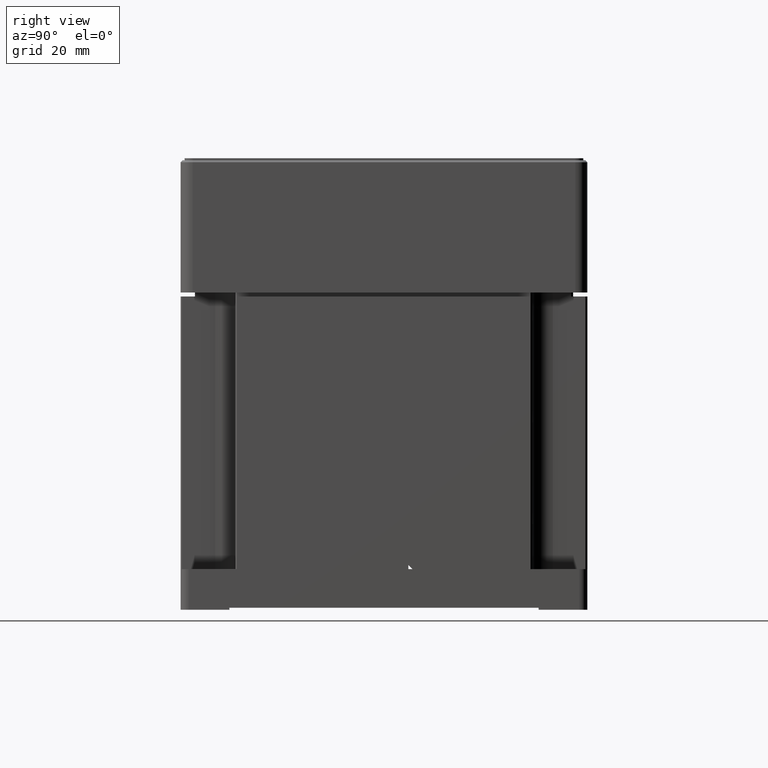
[diagram: clean part render]
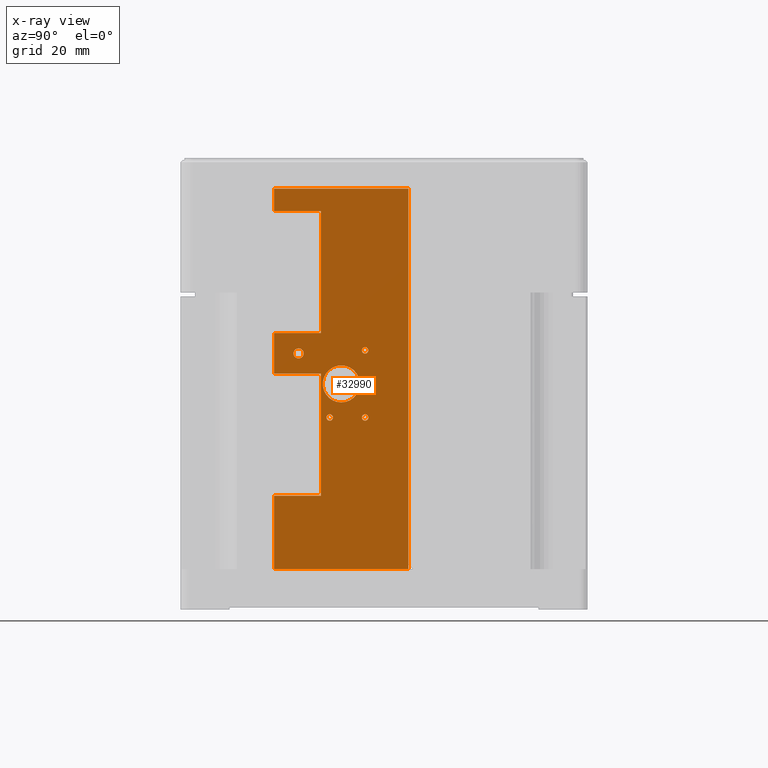
[diagram: x-ray — body ghosted, one internal face saturated and labeled with its STEP entity id]
A machine part, right view, then the same camera in x-ray: the body is ghosted and one INTERNAL B-rep face — a face not visible from any outside direction — is saturated and labeled: STEP entity #32990.
In plain terms, the highlighted planar face has unit normal (-1, 0, 0).
Its self-contained STEP definition (entity closure, byte-faithful):
#130 = AXIS2_PLACEMENT_3D ( 'NONE', #10304, #6712, #16885 ) ;
#478 = CARTESIAN_POINT ( 'NONE',  ( -35.35000000000000853, -27.00000000000001066, 57.99999999999999289 ) ) ;
#928 = CARTESIAN_POINT ( 'NONE',  ( -35.35000000000000853, -27.00000000000001066, 88.00000000000000000 ) ) ;
#1178 = EDGE_LOOP ( 'NONE', ( #38366 ) ) ;
#1618 = EDGE_LOOP ( 'NONE', ( #13299, #17732, #28199, #9153, #24287, #28653, #19878, #34572, #39710, #33043, #14711, #40249 ) ) ;
#1704 = DIRECTION ( 'NONE',  ( -0.000000000000000000, -1.000000000000000000, 0.000000000000000000 ) ) ;
#2226 = DIRECTION ( 'NONE',  ( 1.000000000000000000, 0.000000000000000000, 0.000000000000000000 ) ) ;
#3133 = EDGE_CURVE ( 'NONE', #32290, #32290, #12129, .T. ) ;
#3252 = CARTESIAN_POINT ( 'NONE',  ( -35.35000000000000853, -4.649999999999997691, 38.05000000000000426 ) ) ;
#3322 = EDGE_CURVE ( 'NONE', #40088, #7816, #8596, .T. ) ;
#3359 = AXIS2_PLACEMENT_3D ( 'NONE', #29250, #6778, #36027 ) ;
#3483 = VERTEX_POINT ( 'NONE', #928 ) ;
#3784 = VECTOR ( 'NONE', #9544, 1000.000000000000000 ) ;
#3989 = CARTESIAN_POINT ( 'NONE',  ( -35.35000000000000853, -10.49999999999999822, 50.05000000000001847 ) ) ;
#4139 = FACE_BOUND ( 'NONE', #41968, .T. ) ;
#4351 = CARTESIAN_POINT ( 'NONE',  ( -35.35000000000000853, -27.00000000000001066, 93.50000000000000000 ) ) ;
#4658 = CARTESIAN_POINT ( 'NONE',  ( -35.35000000000000853, -27.00000000000001066, 93.50000000000000000 ) ) ;
#4875 = LINE ( 'NONE', #24977, #9029 ) ;
#4941 = VERTEX_POINT ( 'NONE', #5749 ) ;
#5749 = CARTESIAN_POINT ( 'NONE',  ( -35.35000000000000853, -15.50000000000001066, 47.99999999999998579 ) ) ;
#5809 = LINE ( 'NONE', #18318, #17985 ) ;
#6149 = DIRECTION ( 'NONE',  ( 0.000000000000000000, 0.000000000000000000, 1.000000000000000000 ) ) ;
#6712 = DIRECTION ( 'NONE',  ( 1.000000000000000000, 0.000000000000000000, 0.000000000000000000 ) ) ;
#6778 = DIRECTION ( 'NONE',  ( 1.000000000000000000, 0.000000000000000000, 0.000000000000000000 ) ) ;
#7061 = EDGE_CURVE ( 'NONE', #27200, #27200, #39305, .T. ) ;
#7334 = DIRECTION ( 'NONE',  ( 0.000000000000000000, 0.000000000000000000, 1.000000000000000000 ) ) ;
#7610 = CARTESIAN_POINT ( 'NONE',  ( -35.35000000000000853, -27.00000000000001066, 0.000000000000000000 ) ) ;
#7816 = VERTEX_POINT ( 'NONE', #23383 ) ;
#7839 = LINE ( 'NONE', #4658, #33402 ) ;
#8399 = EDGE_CURVE ( 'NONE', #27948, #29651, #7839, .T. ) ;
#8455 = EDGE_CURVE ( 'NONE', #4941, #27948, #4875, .T. ) ;
#8596 = LINE ( 'NONE', #34877, #39884 ) ;
#8671 = DIRECTION ( 'NONE',  ( 0.000000000000000000, 0.000000000000000000, 1.000000000000000000 ) ) ;
#9029 = VECTOR ( 'NONE', #12058, 1000.000000000000000 ) ;
#9153 = ORIENTED_EDGE ( 'NONE', *, *, #18302, .F. ) ;
#9187 = CARTESIAN_POINT ( 'NONE',  ( -35.35000000000000853, -21.00000000000000355, 53.00000000000000711 ) ) ;
#9544 = DIRECTION ( 'NONE',  ( -0.000000000000000000, 1.000000000000000000, 0.000000000000000000 ) ) ;
#9597 = LINE ( 'NONE', #26128, #40105 ) ;
#9956 = CARTESIAN_POINT ( 'NONE',  ( -35.35000000000000853, 0.000000000000000000, 93.50000000000000000 ) ) ;
#10304 = CARTESIAN_POINT ( 'NONE',  ( -35.35000000000000853, -10.49999999999999822, 45.50000000000000711 ) ) ;
#10694 = FACE_OUTER_BOUND ( 'NONE', #1618, .T. ) ;
#11136 = VECTOR ( 'NONE', #32298, 1000.000000000000000 ) ;
#11195 = CARTESIAN_POINT ( 'NONE',  ( -35.35000000000000853, -15.50000000000001066, 88.00000000000000000 ) ) ;
#11444 = CARTESIAN_POINT ( 'NONE',  ( -35.35000000000000853, -27.00000000000001066, 88.00000000000000000 ) ) ;
#12058 = DIRECTION ( 'NONE',  ( -0.000000000000000000, -1.000000000000000000, 0.000000000000000000 ) ) ;
#12129 = CIRCLE ( 'NONE', #27737, 0.8000000000000020428 ) ;
#12265 = LINE ( 'NONE', #40907, #32447 ) ;
#12399 = CARTESIAN_POINT ( 'NONE',  ( -35.35000000000000853, 5.999999999999998224, 93.50000000000000000 ) ) ;
#12495 = EDGE_CURVE ( 'NONE', #15109, #15109, #36371, .T. ) ;
#12880 = VECTOR ( 'NONE', #27132, 1000.000000000000000 ) ;
#12884 = CARTESIAN_POINT ( 'NONE',  ( -35.35000000000000853, -27.00000000000001066, 93.50000000000000000 ) ) ;
#12981 = CARTESIAN_POINT ( 'NONE',  ( -35.35000000000000853, -15.50000000000001066, 18.00000000000000355 ) ) ;
#13002 = LINE ( 'NONE', #19360, #11136 ) ;
#13299 = ORIENTED_EDGE ( 'NONE', *, *, #29542, .F. ) ;
#14711 = ORIENTED_EDGE ( 'NONE', *, *, #8455, .F. ) ;
#14946 = LINE ( 'NONE', #24875, #35862 ) ;
#15109 = VERTEX_POINT ( 'NONE', #28045 ) ;
#15642 = VERTEX_POINT ( 'NONE', #11195 ) ;
#15745 = CARTESIAN_POINT ( 'NONE',  ( -35.35000000000000853, -27.00000000000001066, 93.49999999999998579 ) ) ;
#16545 = ORIENTED_EDGE ( 'NONE', *, *, #12495, .F. ) ;
#16650 = ORIENTED_EDGE ( 'NONE', *, *, #33732, .F. ) ;
#16885 = DIRECTION ( 'NONE',  ( 0.000000000000000000, 0.000000000000000000, 1.000000000000000000 ) ) ;
#16910 = CARTESIAN_POINT ( 'NONE',  ( -35.35000000000000853, -27.00000000000001066, 47.99999999999998579 ) ) ;
#17732 = ORIENTED_EDGE ( 'NONE', *, *, #3322, .F. ) ;
#17985 = VECTOR ( 'NONE', #25081, 1000.000000000000000 ) ;
#18302 = EDGE_CURVE ( 'NONE', #34042, #31062, #14946, .T. ) ;
#18318 = CARTESIAN_POINT ( 'NONE',  ( -35.35000000000000853, -15.50000000000001066, 93.50000000000000000 ) ) ;
#18434 = CIRCLE ( 'NONE', #130, 4.550000000000012257 ) ;
#18625 = DIRECTION ( 'NONE',  ( 0.000000000000000000, 0.000000000000000000, 1.000000000000000000 ) ) ;
#18859 = CARTESIAN_POINT ( 'NONE',  ( -35.35000000000000853, -13.35000000000000142, 37.25000000000000711 ) ) ;
#19360 = CARTESIAN_POINT ( 'NONE',  ( -35.35000000000000853, -27.00000000000001066, 18.00000000000000355 ) ) ;
#19816 = FACE_BOUND ( 'NONE', #32016, .T. ) ;
#19868 = EDGE_CURVE ( 'NONE', #22784, #15642, #12265, .T. ) ;
#19878 = ORIENTED_EDGE ( 'NONE', *, *, #28719, .F. ) ;
#19904 = LINE ( 'NONE', #32848, #12880 ) ;
#20039 = EDGE_LOOP ( 'NONE', ( #16650 ) ) ;
#20746 = DIRECTION ( 'NONE',  ( 0.000000000000000000, 0.000000000000000000, 1.000000000000000000 ) ) ;
#21678 = AXIS2_PLACEMENT_3D ( 'NONE', #18859, #25008, #6149 ) ;
#21698 = DIRECTION ( 'NONE',  ( -0.000000000000000000, -0.000000000000000000, -1.000000000000000000 ) ) ;
#22454 = AXIS2_PLACEMENT_3D ( 'NONE', #4351, #26605, #36565 ) ;
#22784 = VERTEX_POINT ( 'NONE', #41877 ) ;
#23383 = CARTESIAN_POINT ( 'NONE',  ( -35.35000000000000853, -27.00000000000001066, 18.00000000000000355 ) ) ;
#23568 = CARTESIAN_POINT ( 'NONE',  ( -35.35000000000000853, -13.35000000000000142, 38.05000000000000426 ) ) ;
#23618 = FACE_BOUND ( 'NONE', #39132, .T. ) ;
#23861 = CARTESIAN_POINT ( 'NONE',  ( -35.35000000000000853, -4.649999999999997691, 37.25000000000000711 ) ) ;
#23991 = EDGE_CURVE ( 'NONE', #29651, #22784, #9597, .T. ) ;
#24287 = ORIENTED_EDGE ( 'NONE', *, *, #41093, .F. ) ;
#24875 = CARTESIAN_POINT ( 'NONE',  ( -35.35000000000000853, 5.999999999999998224, 93.50000000000000000 ) ) ;
#24977 = CARTESIAN_POINT ( 'NONE',  ( -35.35000000000000853, -27.00000000000001066, 47.99999999999998579 ) ) ;
#25008 = DIRECTION ( 'NONE',  ( 1.000000000000000000, 0.000000000000000000, 0.000000000000000000 ) ) ;
#25081 = DIRECTION ( 'NONE',  ( 0.000000000000000000, 0.000000000000000000, 1.000000000000000000 ) ) ;
#26128 = CARTESIAN_POINT ( 'NONE',  ( -35.35000000000000853, -27.00000000000001066, 57.99999999999999289 ) ) ;
#26605 = DIRECTION ( 'NONE',  ( -1.000000000000000000, 0.000000000000000000, 0.000000000000000000 ) ) ;
#27132 = DIRECTION ( 'NONE',  ( -0.000000000000000000, -1.000000000000000000, -0.000000000000000000 ) ) ;
#27200 = VERTEX_POINT ( 'NONE', #23568 ) ;
#27376 = VECTOR ( 'NONE', #1704, 1000.000000000000000 ) ;
#27737 = AXIS2_PLACEMENT_3D ( 'NONE', #23861, #33844, #7334 ) ;
#27948 = VERTEX_POINT ( 'NONE', #16910 ) ;
#27993 = LINE ( 'NONE', #11444, #27376 ) ;
#28045 = CARTESIAN_POINT ( 'NONE',  ( -35.35000000000000853, -21.00000000000000355, 54.25000000000000000 ) ) ;
#28137 = VECTOR ( 'NONE', #18625, 1000.000000000000000 ) ;
#28199 = ORIENTED_EDGE ( 'NONE', *, *, #31095, .F. ) ;
#28653 = ORIENTED_EDGE ( 'NONE', *, *, #38882, .F. ) ;
#28690 = DIRECTION ( 'NONE',  ( 0.000000000000000000, 0.000000000000000000, 1.000000000000000000 ) ) ;
#28719 = EDGE_CURVE ( 'NONE', #15642, #3483, #27993, .T. ) ;
#29250 = CARTESIAN_POINT ( 'NONE',  ( -35.35000000000000853, -4.649999999999999467, 53.75000000000000711 ) ) ;
#29542 = EDGE_CURVE ( 'NONE', #7816, #31854, #13002, .T. ) ;
#29651 = VERTEX_POINT ( 'NONE', #478 ) ;
#29768 = CIRCLE ( 'NONE', #3359, 0.8000000000000020428 ) ;
#30978 = AXIS2_PLACEMENT_3D ( 'NONE', #9187, #2226, #28690 ) ;
#31062 = VERTEX_POINT ( 'NONE', #35611 ) ;
#31095 = EDGE_CURVE ( 'NONE', #31062, #40088, #19904, .T. ) ;
#31420 = LINE ( 'NONE', #9956, #3784 ) ;
#31549 = ORIENTED_EDGE ( 'NONE', *, *, #7061, .F. ) ;
#31743 = CARTESIAN_POINT ( 'NONE',  ( -35.35000000000000853, -4.649999999999999467, 54.55000000000001137 ) ) ;
#31854 = VERTEX_POINT ( 'NONE', #12981 ) ;
#32016 = EDGE_LOOP ( 'NONE', ( #16545 ) ) ;
#32290 = VERTEX_POINT ( 'NONE', #3252 ) ;
#32298 = DIRECTION ( 'NONE',  ( 0.000000000000000000, 1.000000000000000000, -0.000000000000000000 ) ) ;
#32447 = VECTOR ( 'NONE', #8671, 1000.000000000000000 ) ;
#32848 = CARTESIAN_POINT ( 'NONE',  ( -35.35000000000000853, 0.000000000000000000, 0.000000000000000000 ) ) ;
#32967 = FACE_BOUND ( 'NONE', #20039, .T. ) ;
#32990 = ADVANCED_FACE ( 'NONE', ( #10694, #19816, #32967, #4139, #36349, #23618 ), #33180, .F. ) ;
#33043 = ORIENTED_EDGE ( 'NONE', *, *, #8399, .F. ) ;
#33180 = PLANE ( 'NONE',  #22454 ) ;
#33402 = VECTOR ( 'NONE', #20746, 1000.000000000000000 ) ;
#33732 = EDGE_CURVE ( 'NONE', #36206, #36206, #18434, .T. ) ;
#33844 = DIRECTION ( 'NONE',  ( 1.000000000000000000, 0.000000000000000000, 0.000000000000000000 ) ) ;
#34042 = VERTEX_POINT ( 'NONE', #12399 ) ;
#34572 = ORIENTED_EDGE ( 'NONE', *, *, #19868, .F. ) ;
#34877 = CARTESIAN_POINT ( 'NONE',  ( -35.35000000000000853, -27.00000000000001066, 93.50000000000000000 ) ) ;
#34950 = LINE ( 'NONE', #12884, #28137 ) ;
#35611 = CARTESIAN_POINT ( 'NONE',  ( -35.35000000000000853, 5.999999999999998224, 0.000000000000000000 ) ) ;
#35735 = VERTEX_POINT ( 'NONE', #31743 ) ;
#35862 = VECTOR ( 'NONE', #21698, 1000.000000000000000 ) ;
#36027 = DIRECTION ( 'NONE',  ( 0.000000000000000000, 0.000000000000000000, 1.000000000000000000 ) ) ;
#36206 = VERTEX_POINT ( 'NONE', #3989 ) ;
#36349 = FACE_BOUND ( 'NONE', #1178, .T. ) ;
#36371 = CIRCLE ( 'NONE', #30978, 1.249999999999994227 ) ;
#36565 = DIRECTION ( 'NONE',  ( 0.000000000000000000, 0.000000000000000000, 1.000000000000000000 ) ) ;
#37171 = VERTEX_POINT ( 'NONE', #15745 ) ;
#37795 = EDGE_CURVE ( 'NONE', #35735, #35735, #29768, .T. ) ;
#38366 = ORIENTED_EDGE ( 'NONE', *, *, #3133, .F. ) ;
#38667 = DIRECTION ( 'NONE',  ( 0.000000000000000000, 1.000000000000000000, -0.000000000000000000 ) ) ;
#38882 = EDGE_CURVE ( 'NONE', #3483, #37171, #34950, .T. ) ;
#39132 = EDGE_LOOP ( 'NONE', ( #31549 ) ) ;
#39305 = CIRCLE ( 'NONE', #21678, 0.8000000000000020428 ) ;
#39710 = ORIENTED_EDGE ( 'NONE', *, *, #23991, .F. ) ;
#39884 = VECTOR ( 'NONE', #41443, 1000.000000000000000 ) ;
#40088 = VERTEX_POINT ( 'NONE', #7610 ) ;
#40105 = VECTOR ( 'NONE', #38667, 1000.000000000000000 ) ;
#40249 = ORIENTED_EDGE ( 'NONE', *, *, #40727, .F. ) ;
#40449 = ORIENTED_EDGE ( 'NONE', *, *, #37795, .F. ) ;
#40727 = EDGE_CURVE ( 'NONE', #31854, #4941, #5809, .T. ) ;
#40907 = CARTESIAN_POINT ( 'NONE',  ( -35.35000000000000853, -15.50000000000001066, 93.50000000000000000 ) ) ;
#41093 = EDGE_CURVE ( 'NONE', #37171, #34042, #31420, .T. ) ;
#41443 = DIRECTION ( 'NONE',  ( 0.000000000000000000, 0.000000000000000000, 1.000000000000000000 ) ) ;
#41877 = CARTESIAN_POINT ( 'NONE',  ( -35.35000000000000853, -15.50000000000001066, 57.99999999999999289 ) ) ;
#41968 = EDGE_LOOP ( 'NONE', ( #40449 ) ) ;